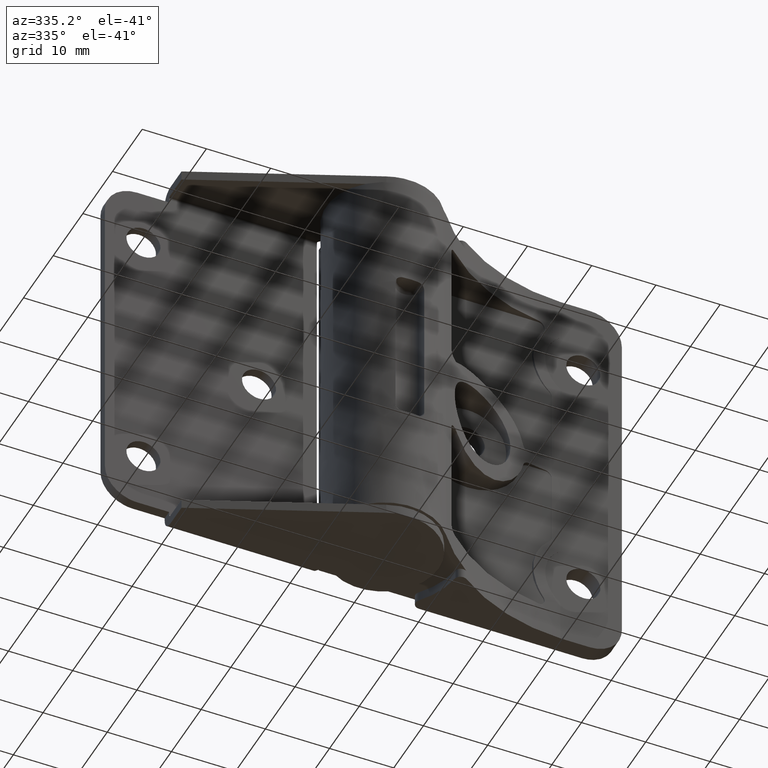
[diagram: clean part render]
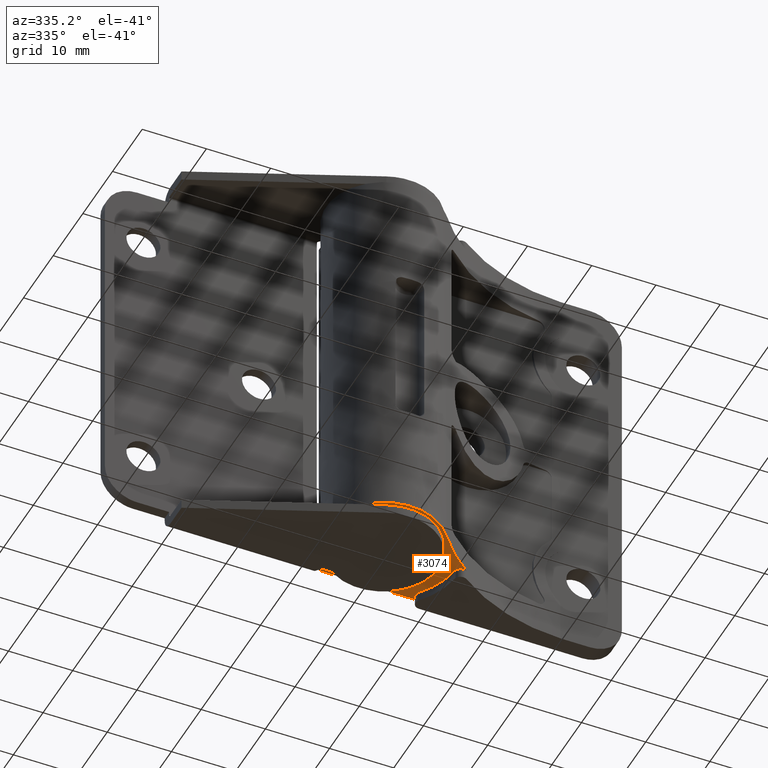
[diagram: same view with one face highlighted and labeled with its STEP entity id]
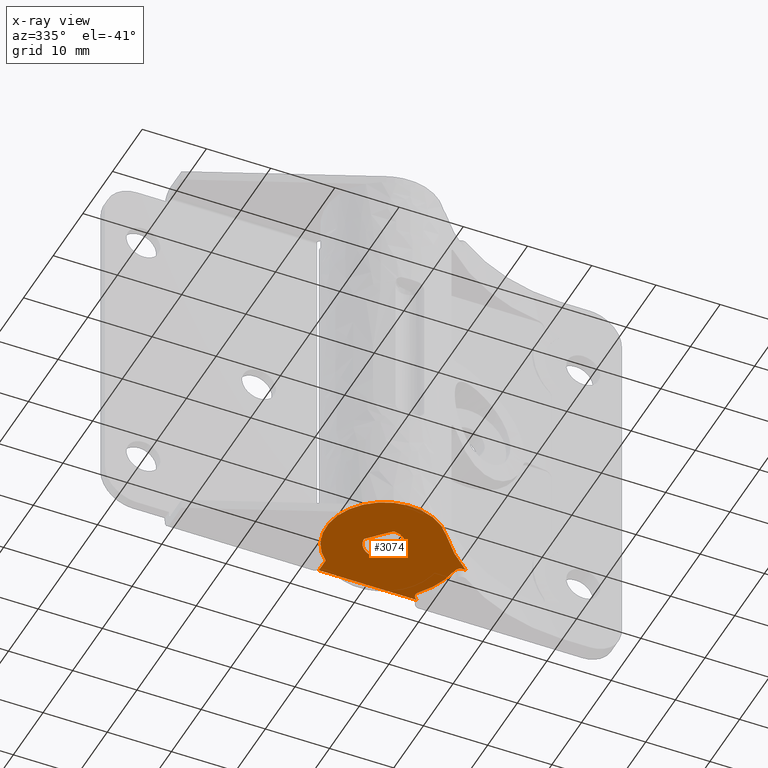
[diagram: x-ray of the same camera — body ghosted, the highlighted face saturated]
A machine part, auxiliary view. The second image highlights one B-rep face of the part: STEP entity #3074.
The next image is the same camera in x-ray: the body ghosted, the highlighted face saturated — about 0% of this face is hidden behind the body in this view.
In plain terms, the highlighted face is a freeform B-spline surface patch.
Its self-contained STEP definition (entity closure, byte-faithful):
#2924=CARTESIAN_POINT('',(-10.090281612669649,9.898865537148868,1.499999999999918));
#2925=CARTESIAN_POINT('',(14.143364428571280,9.898865537148870,1.499999999999918));
#2926=CARTESIAN_POINT('',(-10.090281612669649,-9.894172765588250,1.499999999999918));
#2927=CARTESIAN_POINT('',(14.143364428571280,-9.894172765588250,1.499999999999918));
#2928=B_SPLINE_SURFACE_WITH_KNOTS('',1,1,((#2924,#2926),(#2925,#2927)),.UNSPECIFIED.,.F.,.F.,.U.,(2,2),(2,2),(0.0,24.233646041240920),(0.0,19.793038302737120),.UNSPECIFIED.);
#2929=CARTESIAN_POINT('',(7.166333345818909,-5.444599744389260,1.499999999999946));
#2930=VERTEX_POINT('',#2929);
#2931=CARTESIAN_POINT('',(-6.000014999999790,6.708190516061500,1.499999999999946));
#2932=VERTEX_POINT('',#2931);
#2933=CARTESIAN_POINT('',(7.166333345818926,-5.444599744389270,1.499999999999946));
#2934=CARTESIAN_POINT('',(3.786943373532062,-9.892646650294932,1.499999999999946));
#2935=CARTESIAN_POINT('',(-1.698817181693789,-8.838213630773018,1.499999999999946));
#2936=CARTESIAN_POINT('',(-7.184577736919642,-7.783780611251105,1.499999999999946));
#2937=CARTESIAN_POINT('',(-8.674138269283501,-2.399859430331581,1.499999999999946));
#2938=CARTESIAN_POINT('',(-10.163698801647364,2.984061750587940,1.499999999999946));
#2939=CARTESIAN_POINT('',(-6.000014999999793,6.708190516061501,1.499999999999946));
#2947=(BOUNDED_CURVE()B_SPLINE_CURVE(2,(#2933,#2934,#2935,#2936,#2937,#2938,#2939),.UNSPECIFIED.,.F.,.U.)B_SPLINE_CURVE_WITH_KNOTS((3,2,2,3),(0.0,0.333333333333333,0.666666666666667,1.0),.UNSPECIFIED.)CURVE()GEOMETRIC_REPRESENTATION_ITEM()RATIONAL_B_SPLINE_CURVE((1.0,0.849641338482108,1.0,0.849641338482108,1.0,0.849641338482108,1.0))REPRESENTATION_ITEM(''));
#2948=EDGE_CURVE('',#2930,#2932,#2947,.T.);
#2949=ORIENTED_EDGE('',*,*,#2948,.T.);
#2950=CARTESIAN_POINT('',(-6.000014999999790,9.0,1.499999999999918));
#2951=VERTEX_POINT('',#2950);
#2952=CARTESIAN_POINT('',(-6.000014999999790,6.708190516061500,1.499999999999946));
#2953=CARTESIAN_POINT('',(-6.000014999999790,9.0,1.499999999999918));
#2954=QUASI_UNIFORM_CURVE('',1,(#2952,#2953),.UNSPECIFIED.,.F.,.U.);
#2955=EDGE_CURVE('',#2932,#2951,#2954,.T.);
#2956=ORIENTED_EDGE('',*,*,#2955,.T.);
#2957=CARTESIAN_POINT('',(9.604690000000002,9.0,1.499999999999946));
#2958=VERTEX_POINT('',#2957);
#2959=CARTESIAN_POINT('',(-6.000014999999790,9.0,1.499999999999918));
#2960=CARTESIAN_POINT('',(9.604690000000002,9.0,1.499999999999946));
#2961=QUASI_UNIFORM_CURVE('',1,(#2959,#2960),.UNSPECIFIED.,.F.,.U.);
#2962=EDGE_CURVE('',#2951,#2958,#2961,.T.);
#2963=ORIENTED_EDGE('',*,*,#2962,.T.);
#2964=CARTESIAN_POINT('',(8.836315052417641,7.360000046931420,1.499999999999946));
#2965=VERTEX_POINT('',#2964);
#2966=CARTESIAN_POINT('',(8.836315052417634,7.360000046931414,1.499999999999946));
#2967=CARTESIAN_POINT('',(8.429406951926474,7.848528192733055,1.499999999999947));
#2968=CARTESIAN_POINT('',(8.699151499143028,8.424264096366528,1.499999999999946));
#2969=CARTESIAN_POINT('',(8.968896046359582,9.000000000000002,1.499999999999947));
#2970=CARTESIAN_POINT('',(9.604690000000002,9.000000000000002,1.499999999999946));
#2978=(BOUNDED_CURVE()B_SPLINE_CURVE(2,(#2966,#2967,#2968,#2969,#2970),.UNSPECIFIED.,.F.,.U.)B_SPLINE_CURVE_WITH_KNOTS((3,2,3),(0.0,0.500000000000000,1.0),.UNSPECIFIED.)CURVE()GEOMETRIC_REPRESENTATION_ITEM()RATIONAL_B_SPLINE_CURVE((1.0,0.843879166814340,1.0,0.843879166814340,1.0))REPRESENTATION_ITEM(''));
#2979=EDGE_CURVE('',#2965,#2958,#2978,.T.);
#2980=ORIENTED_EDGE('',*,*,#2979,.F.);
#2981=CARTESIAN_POINT('',(11.447063366234900,1.102152570837300,1.499999999999946));
#2982=VERTEX_POINT('',#2981);
#2983=CARTESIAN_POINT('',(8.836315052417641,7.360000046931420,1.499999999999946));
#2984=CARTESIAN_POINT('',(11.107027328855278,4.633811862263397,1.499999999999946));
#2985=CARTESIAN_POINT('',(11.447063366234900,1.102152570837300,1.499999999999946));
#2993=(BOUNDED_CURVE()B_SPLINE_CURVE(2,(#2983,#2984,#2985),.UNSPECIFIED.,.F.,.U.)CURVE()GEOMETRIC_REPRESENTATION_ITEM()QUASI_UNIFORM_CURVE()RATIONAL_B_SPLINE_CURVE((1.0,0.955556182030206,1.0))REPRESENTATION_ITEM(''));
#2994=EDGE_CURVE('',#2965,#2982,#2993,.T.);
#2995=ORIENTED_EDGE('',*,*,#2994,.T.);
#2996=CARTESIAN_POINT('',(13.042836018900781,0.398273941473369,1.499999999999946));
#2997=VERTEX_POINT('',#2996);
#2998=CARTESIAN_POINT('',(13.042836018900781,0.398273941473363,1.499999999999946));
#2999=CARTESIAN_POINT('',(12.574595067399851,0.046749329554160,1.499999999999946));
#3000=CARTESIAN_POINT('',(12.038886551550389,0.283044753745587,1.499999999999946));
#3001=CARTESIAN_POINT('',(11.503178035700932,0.519340177937014,1.499999999999946));
#3002=CARTESIAN_POINT('',(11.447063366234900,1.102152570837300,1.499999999999946));
#3010=(BOUNDED_CURVE()B_SPLINE_CURVE(2,(#2998,#2999,#3000,#3001,#3002),.UNSPECIFIED.,.F.,.U.)B_SPLINE_CURVE_WITH_KNOTS((3,2,3),(0.0,0.500000000000000,1.0),.UNSPECIFIED.)CURVE()GEOMETRIC_REPRESENTATION_ITEM()RATIONAL_B_SPLINE_CURVE((1.0,0.862961137784093,1.0,0.862961137784093,1.0))REPRESENTATION_ITEM(''));
#3011=EDGE_CURVE('',#2997,#2982,#3010,.T.);
#3012=ORIENTED_EDGE('',*,*,#3011,.F.);
#3013=CARTESIAN_POINT('',(7.166333345818905,-5.444599744389263,1.499999999999946));
#3014=CARTESIAN_POINT('',(9.697186776052869,-2.113420193650725,1.499999999999946));
#3015=CARTESIAN_POINT('',(13.042836018900781,0.398273941473369,1.499999999999946));
#3023=(BOUNDED_CURVE()B_SPLINE_CURVE(2,(#3013,#3014,#3015),.UNSPECIFIED.,.F.,.U.)CURVE()GEOMETRIC_REPRESENTATION_ITEM()QUASI_UNIFORM_CURVE()RATIONAL_B_SPLINE_CURVE((1.0,0.990416234528627,1.0))REPRESENTATION_ITEM(''));
#3024=EDGE_CURVE('',#2930,#2997,#3023,.T.);
#3025=ORIENTED_EDGE('',*,*,#3024,.F.);
#3026=EDGE_LOOP('',(#2949,#2956,#2963,#2980,#2995,#3012,#3025));
#3027=FACE_OUTER_BOUND('',#3026,.T.);
#3028=CARTESIAN_POINT('',(-3.043405720741325,0.200453533166554,1.499999999999946));
#3029=VERTEX_POINT('',#3028);
#3030=CARTESIAN_POINT('',(0.094112862843491,-3.048547649135140,1.499999999999946));
#3031=VERTEX_POINT('',#3030);
#3032=CARTESIAN_POINT('',(-3.043405720741325,0.200453533166554,1.499999999999946));
#3033=CARTESIAN_POINT('',(0.094112862843491,-3.048547649135140,1.499999999999946));
#3034=QUASI_UNIFORM_CURVE('',1,(#3032,#3033),.UNSPECIFIED.,.F.,.U.);
#3035=EDGE_CURVE('',#3029,#3031,#3034,.T.);
#3036=ORIENTED_EDGE('',*,*,#3035,.T.);
#3037=CARTESIAN_POINT('',(3.043409273314195,-0.200445211964481,1.499999999999946));
#3038=VERTEX_POINT('',#3037);
#3039=CARTESIAN_POINT('',(3.043409273314195,-0.200445211964481,1.499999999999946));
#3040=CARTESIAN_POINT('',(2.861452561105847,-2.963116207562776,1.499999999999946));
#3041=CARTESIAN_POINT('',(0.094112862843491,-3.048547649135140,1.499999999999946));
#3049=(BOUNDED_CURVE()B_SPLINE_CURVE(2,(#3039,#3040,#3041),.UNSPECIFIED.,.F.,.U.)CURVE()GEOMETRIC_REPRESENTATION_ITEM()QUASI_UNIFORM_CURVE()RATIONAL_B_SPLINE_CURVE((1.0,0.740431749272860,1.0))REPRESENTATION_ITEM(''));
#3050=EDGE_CURVE('',#3038,#3031,#3049,.T.);
#3051=ORIENTED_EDGE('',*,*,#3050,.F.);
#3052=CARTESIAN_POINT('',(-0.094115854302369,3.048552280640630,1.499999999999946));
#3053=VERTEX_POINT('',#3052);
#3054=CARTESIAN_POINT('',(3.043409273314195,-0.200445211964481,1.499999999999946));
#3055=CARTESIAN_POINT('',(-0.094115854302369,3.048552280640630,1.499999999999946));
#3056=QUASI_UNIFORM_CURVE('',1,(#3054,#3055),.UNSPECIFIED.,.F.,.U.);
#3057=EDGE_CURVE('',#3038,#3053,#3056,.T.);
#3058=ORIENTED_EDGE('',*,*,#3057,.T.);
#3059=CARTESIAN_POINT('',(-3.043405720741325,0.200453533166554,1.499999999999946));
#3060=CARTESIAN_POINT('',(-2.861443527010411,2.963116117984464,1.499999999999946));
#3061=CARTESIAN_POINT('',(-0.094115854302369,3.048552280640630,1.499999999999946));
#3069=(BOUNDED_CURVE()B_SPLINE_CURVE(2,(#3059,#3060,#3061),.UNSPECIFIED.,.F.,.U.)CURVE()GEOMETRIC_REPRESENTATION_ITEM()QUASI_UNIFORM_CURVE()RATIONAL_B_SPLINE_CURVE((1.0,0.740433003601684,1.0))REPRESENTATION_ITEM(''));
#3070=EDGE_CURVE('',#3029,#3053,#3069,.T.);
#3071=ORIENTED_EDGE('',*,*,#3070,.F.);
#3072=EDGE_LOOP('',(#3036,#3051,#3058,#3071));
#3073=FACE_BOUND('',#3072,.T.);
#3074=ADVANCED_FACE('',(#3027,#3073),#2928,.T.);